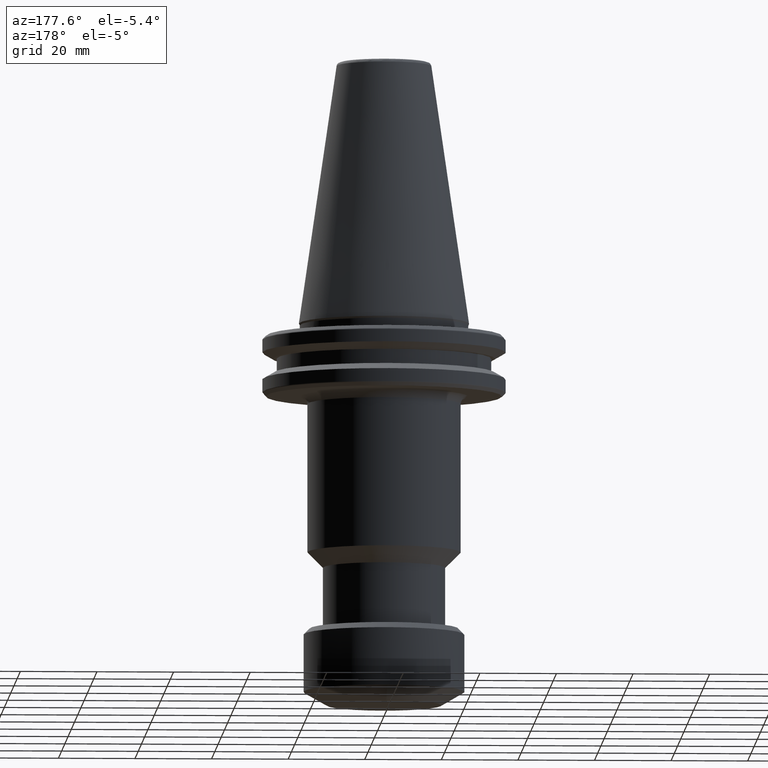
[diagram: clean part render]
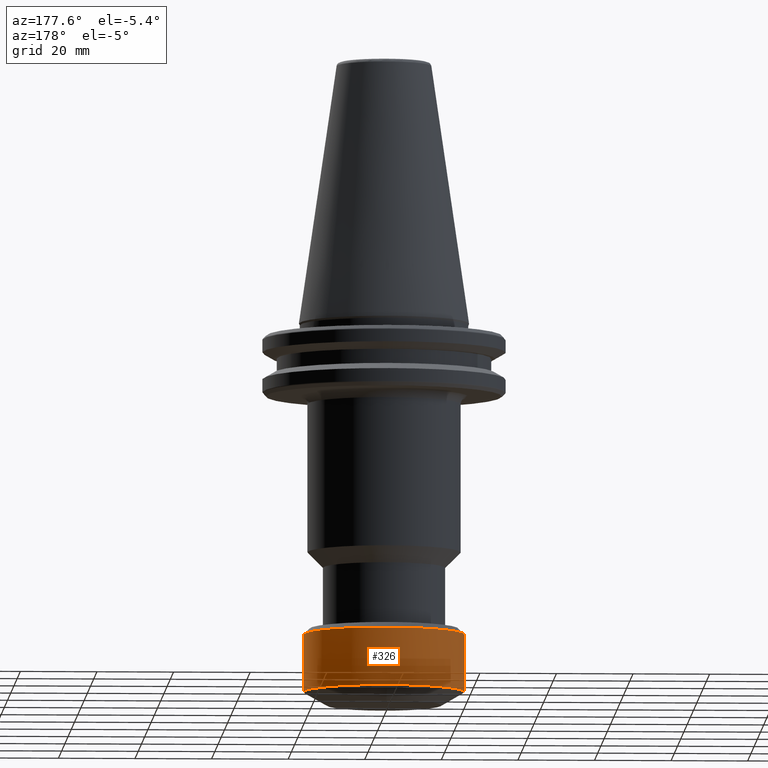
[diagram: same view with one face highlighted and labeled with its STEP entity id]
A machine part, auxiliary view. The second image highlights one B-rep face of the part: STEP entity #326.
In plain terms, the highlighted cylindrical surface (partial cylindrical patch) has radius 21 mm, axis along (-0, 0, 1).
Its self-contained STEP definition (entity closure, byte-faithful):
#9 = VERTEX_POINT ( 'NONE', #668 ) ;
#97 = VECTOR ( 'NONE', #399, 1000.000000000000000 ) ;
#137 = EDGE_CURVE ( 'NONE', #441, #716, #688, .T. ) ;
#146 = VERTEX_POINT ( 'NONE', #1446 ) ;
#248 = DIRECTION ( 'NONE',  ( -1.000000000000000000, 0.0000000000000000000, -6.608470384673549100E-016 ) ) ;
#326 = ADVANCED_FACE ( 'NONE', ( #419 ), #1399, .T. ) ;
#343 = EDGE_CURVE ( 'NONE', #716, #387, #1015, .T. ) ;
#380 = DIRECTION ( 'NONE',  ( -3.558407130208835200E-016, -0.0000000000000000000, 1.000000000000000000 ) ) ;
#387 = VERTEX_POINT ( 'NONE', #935 ) ;
#399 = DIRECTION ( 'NONE',  ( -3.304235192336775500E-016, 0.0000000000000000000, 1.000000000000000000 ) ) ;
#419 = FACE_OUTER_BOUND ( 'NONE', #695, .T. ) ;
#441 = VERTEX_POINT ( 'NONE', #823 ) ;
#567 = DIRECTION ( 'NONE',  ( 1.000000000000000000, 0.0000000000000000000, 0.0000000000000000000 ) ) ;
#586 = CARTESIAN_POINT ( 'NONE',  ( 0.0000000000000000000, 0.0000000000000000000, -96.53589838499999600 ) ) ;
#659 = AXIS2_PLACEMENT_3D ( 'NONE', #669, #1325, #567 ) ;
#668 = CARTESIAN_POINT ( 'NONE',  ( 21.00000000000000700, 0.0000000000000000000, -81.50000000000000000 ) ) ;
#669 = CARTESIAN_POINT ( 'NONE',  ( -2.292773743318137900E-030, 0.0000000000000000000, -96.53589838499998200 ) ) ;
#679 = EDGE_CURVE ( 'NONE', #387, #146, #1072, .T. ) ;
#688 = CIRCLE ( 'NONE', #659, 21.00000000000000000 ) ;
#695 = EDGE_LOOP ( 'NONE', ( #916, #1278, #975, #1169, #1506 ) ) ;
#716 = VERTEX_POINT ( 'NONE', #1030 ) ;
#798 = AXIS2_PLACEMENT_3D ( 'NONE', #586, #1462, #1196 ) ;
#823 = CARTESIAN_POINT ( 'NONE',  ( 21.00000000000000000, 0.0000000000000000000, -96.53589838499998200 ) ) ;
#891 = CARTESIAN_POINT ( 'NONE',  ( 5.337610695313326300E-016, 0.0000000000000000000, -81.50000000000001400 ) ) ;
#916 = ORIENTED_EDGE ( 'NONE', *, *, #343, .T. ) ;
#935 = CARTESIAN_POINT ( 'NONE',  ( -21.00000000000000000, 2.571758278209441700E-015, -96.53589838499998200 ) ) ;
#966 = AXIS2_PLACEMENT_3D ( 'NONE', #1063, #1323, #1193 ) ;
#975 = ORIENTED_EDGE ( 'NONE', *, *, #1240, .F. ) ;
#1014 = AXIS2_PLACEMENT_3D ( 'NONE', #891, #380, #248 ) ;
#1015 = CIRCLE ( 'NONE', #966, 21.00000000000000000 ) ;
#1030 = CARTESIAN_POINT ( 'NONE',  ( 2.571758278209442100E-015, 21.00000000000000400, -96.53589838499998200 ) ) ;
#1063 = CARTESIAN_POINT ( 'NONE',  ( -2.292773743318137900E-030, 0.0000000000000000000, -96.53589838499998200 ) ) ;
#1072 = LINE ( 'NONE', #1645, #97 ) ;
#1075 = CIRCLE ( 'NONE', #1014, 21.00000000000000700 ) ;
#1106 = DIRECTION ( 'NONE',  ( -3.304235192336775500E-016, 0.0000000000000000000, 1.000000000000000000 ) ) ;
#1169 = ORIENTED_EDGE ( 'NONE', *, *, #1192, .F. ) ;
#1192 = EDGE_CURVE ( 'NONE', #441, #9, #1538, .T. ) ;
#1193 = DIRECTION ( 'NONE',  ( 1.000000000000000000, 0.0000000000000000000, 0.0000000000000000000 ) ) ;
#1196 = DIRECTION ( 'NONE',  ( 1.000000000000000000, 0.0000000000000000000, 6.608470384673551000E-016 ) ) ;
#1197 = VECTOR ( 'NONE', #1106, 1000.000000000000000 ) ;
#1240 = EDGE_CURVE ( 'NONE', #9, #146, #1075, .T. ) ;
#1243 = CARTESIAN_POINT ( 'NONE',  ( 21.00000000000000000, 0.0000000000000000000, -96.53589838499998200 ) ) ;
#1278 = ORIENTED_EDGE ( 'NONE', *, *, #679, .T. ) ;
#1323 = DIRECTION ( 'NONE',  ( -3.304235192336775500E-016, 0.0000000000000000000, 1.000000000000000000 ) ) ;
#1325 = DIRECTION ( 'NONE',  ( -3.304235192336775500E-016, 0.0000000000000000000, 1.000000000000000000 ) ) ;
#1399 = CYLINDRICAL_SURFACE ( 'NONE', #798, 21.00000000000000000 ) ;
#1446 = CARTESIAN_POINT ( 'NONE',  ( -21.00000000000000700, 2.571758278209442100E-015, -81.50000000000002800 ) ) ;
#1462 = DIRECTION ( 'NONE',  ( -3.304235192336775500E-016, 0.0000000000000000000, 1.000000000000000000 ) ) ;
#1506 = ORIENTED_EDGE ( 'NONE', *, *, #137, .T. ) ;
#1538 = LINE ( 'NONE', #1243, #1197 ) ;
#1645 = CARTESIAN_POINT ( 'NONE',  ( -21.00000000000000000, 2.571758278209441700E-015, -96.53589838500001000 ) ) ;